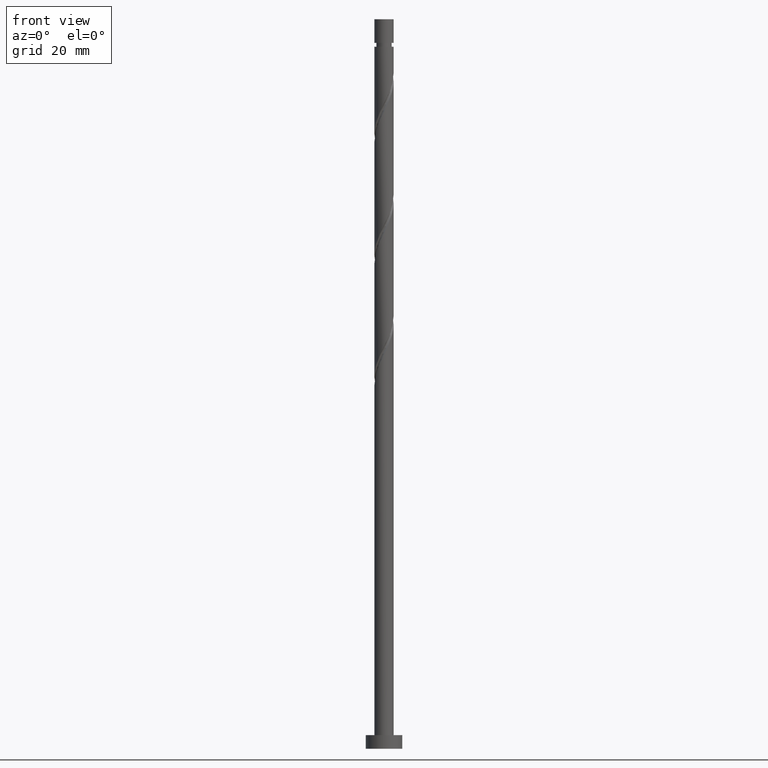
[diagram: clean part render]
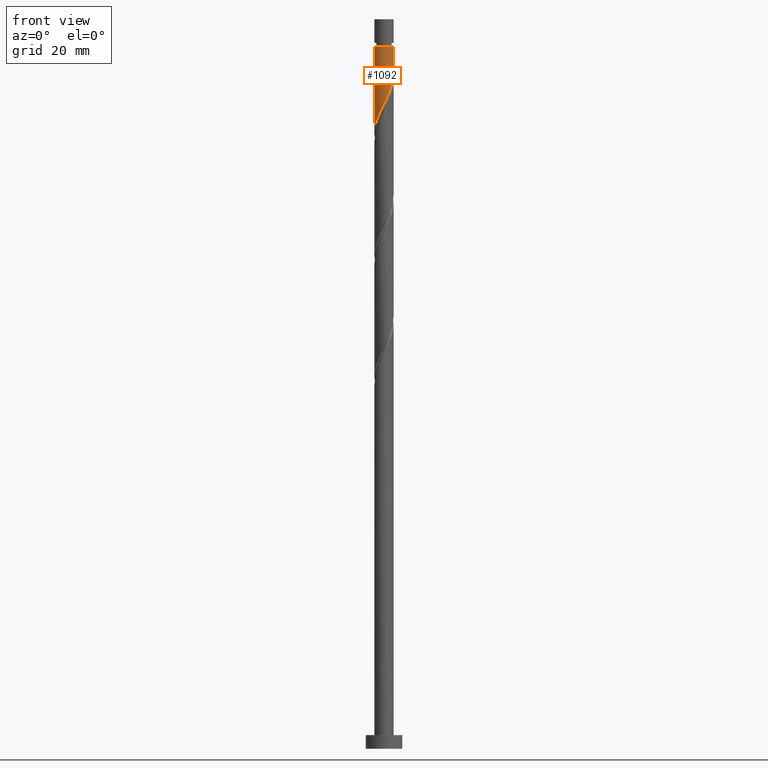
[diagram: same view with one face highlighted and labeled with its STEP entity id]
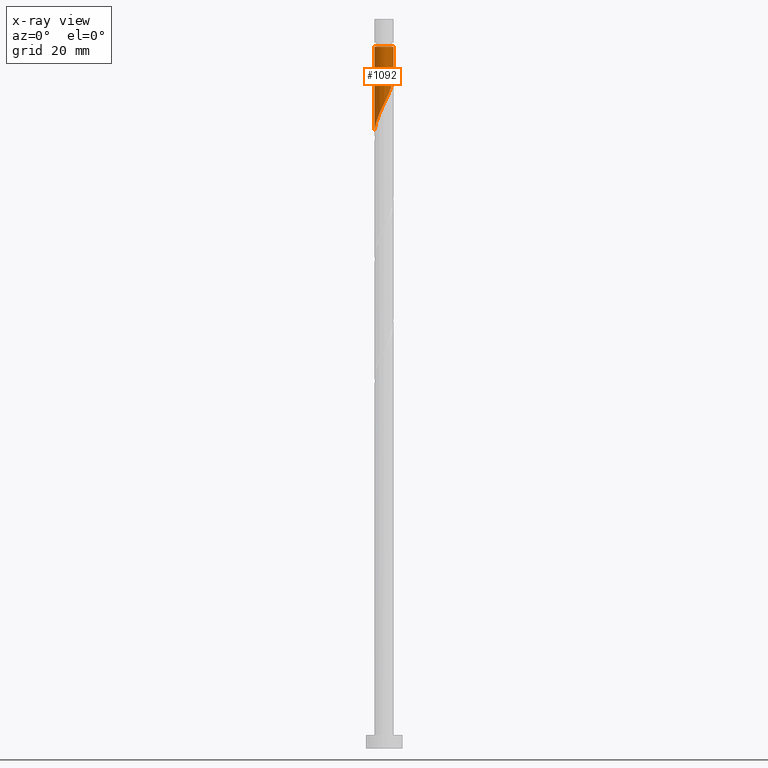
[diagram: x-ray of the same camera — body ghosted, the highlighted face saturated]
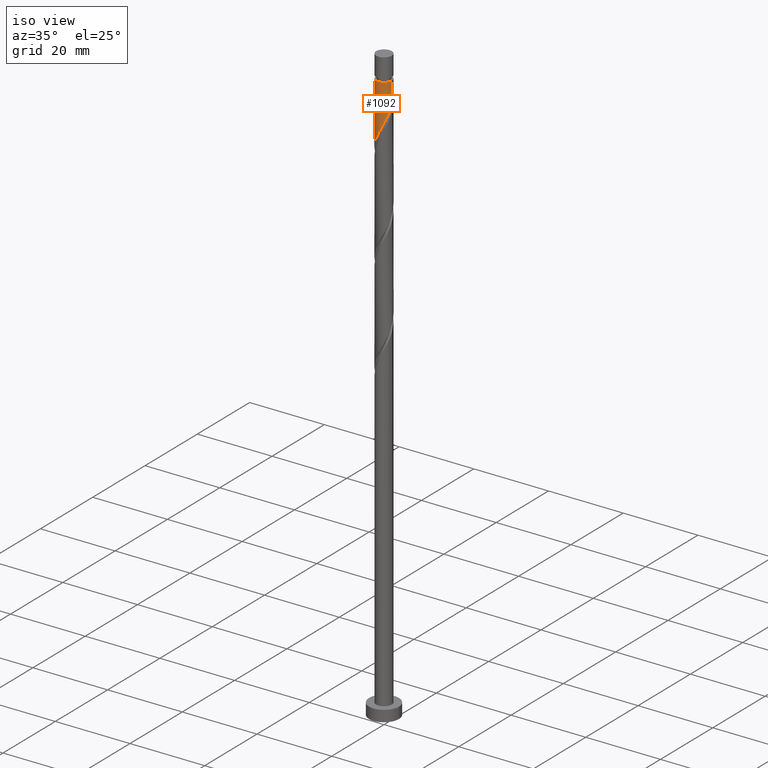
[diagram: same view with one face highlighted and labeled with its STEP entity id]
A machine part, front view. The second image highlights one B-rep face of the part: STEP entity #1092.
The next image is the same camera in x-ray: the body ghosted, the highlighted face saturated — about 0% of this face is hidden behind the body in this view.
A second angle (iso view) of the same face is appended — the face is thin or edge-on in the first view.
In plain terms, the highlighted cylindrical surface (edge-blend (fillet) strip) has radius 2.1 mm, axis along (-0, -0, -1).
Its self-contained STEP definition (entity closure, byte-faithful):
#15 = DIRECTION ( 'NONE',  ( -0.000000000000000000, -0.000000000000000000, -1.000000000000000000 ) ) ;
#22 = DIRECTION ( 'NONE',  ( -1.000000000000000000, 0.000000000000000000, 0.000000000000000000 ) ) ;
#52 = ORIENTED_EDGE ( 'NONE', *, *, #1243, .T. ) ;
#85 = CARTESIAN_POINT ( 'NONE',  ( 1.977579907388731906, -0.7065250950195427482, 146.6971200606527077 ) ) ;
#98 = VERTEX_POINT ( 'NONE', #871 ) ;
#225 = EDGE_LOOP ( 'NONE', ( #1224, #52, #1568, #1409 ) ) ;
#238 = CARTESIAN_POINT ( 'NONE',  ( -2.100000000000000089, 0.000000000000000000, 160.0000000000000000 ) ) ;
#297 = DIRECTION ( 'NONE',  ( -1.000000000000000000, 0.000000000000000000, 0.000000000000000000 ) ) ;
#304 = CARTESIAN_POINT ( 'NONE',  ( 0.000000000000000000, 0.000000000000000000, 160.0000000000000000 ) ) ;
#344 = CARTESIAN_POINT ( 'NONE',  ( -1.828995469419655517, -1.031879630985307550, 137.0001503636829909 ) ) ;
#355 = CARTESIAN_POINT ( 'NONE',  ( 2.099999999999999645, 9.721933457272655766E-17, 148.1526351460141484 ) ) ;
#364 = CARTESIAN_POINT ( 'NONE',  ( -2.100000000000000089, 1.408184669234184763E-14, 134.8193018126808340 ) ) ;
#398 = CARTESIAN_POINT ( 'NONE',  ( 2.099999999999999645, 9.721933457272654534E-17, 148.1526351460141484 ) ) ;
#403 = LINE ( 'NONE', #1550, #1271 ) ;
#465 = CARTESIAN_POINT ( 'NONE',  ( 0.4796760965221106843, -2.066657986902916022, 142.4546958182285152 ) ) ;
#487 = LINE ( 'NONE', #238, #620 ) ;
#512 = CARTESIAN_POINT ( 'NONE',  ( 2.100000000000000089, -0.06042860570002907966, 148.0305371412959516 ) ) ;
#522 = CARTESIAN_POINT ( 'NONE',  ( -2.099999999999993427, 0.000000000000000000, 153.9698473333799598 ) ) ;
#526 = VERTEX_POINT ( 'NONE', #398 ) ;
#582 = CARTESIAN_POINT ( 'NONE',  ( 1.520848874254228988, -1.479250855698230893, 144.8789382424708947 ) ) ;
#591 = CARTESIAN_POINT ( 'NONE',  ( -2.100000000000000533, -0.2405107475087535640, 135.3052617656521477 ) ) ;
#620 = VECTOR ( 'NONE', #1225, 1000.000000000000000 ) ;
#627 = CARTESIAN_POINT ( 'NONE',  ( 2.096525147393186739, -0.1207572206867016384, 147.9092412727738974 ) ) ;
#696 = CARTESIAN_POINT ( 'NONE',  ( -1.680633576468425483, -1.294849479303000983, 137.6062109697435858 ) ) ;
#708 = CARTESIAN_POINT ( 'NONE',  ( 2.079162880215278619, -0.4221920296964537522, 147.3031806667132741 ) ) ;
#770 = VERTEX_POINT ( 'NONE', #364 ) ;
#774 = CYLINDRICAL_SURFACE ( 'NONE', #1441, 2.100000000000000089 ) ;
#802 =( BOUNDED_CURVE ( )  B_SPLINE_CURVE ( 2, ( #355, #512, #627, #708, #85, #832, #996, #582, #1076, #1619, #1483, #465, #953, #868, #814, #839, #1328, #1241, #1475, #696, #344, #1348, #1206, #591, #1085 ),
 .UNSPECIFIED., .F., .T. ) 
 B_SPLINE_CURVE_WITH_KNOTS ( ( 3, 2, 2, 2, 2, 2, 2, 2, 2, 2, 2, 2, 3 ),
 ( 0.3045252162417513841, 0.3068181818181818232, 0.3181818181818181768, 0.3295454545454545303, 0.3409090909090908839, 0.3522727272727272929, 0.3636363636363636465, 0.3750000000000000000, 0.3863636363636363535, 0.3977272727272727071, 0.4090909090909091161, 0.4204545454545454697, 0.4295252162417514952 ),
 .UNSPECIFIED. ) 
 CURVE ( )  GEOMETRIC_REPRESENTATION_ITEM ( )  RATIONAL_B_SPLINE_CURVE ( ( 0.9061101570135617900, 0.9072237824201438983, 0.9090909090909213841, 0.8998376744372237335, 0.9090909090909213841, 0.8998376744372237335, 0.9090909090909213841, 0.8998376744372237335, 0.9090909090909213841, 0.8998376744372237335, 0.9090909090909213841, 0.8998376744372237335, 0.9090909090909213841, 0.8998376744372237335, 0.9090909090909213841, 0.8998376744372237335, 0.9090909090909213841, 0.8998376744372237335, 0.9090909090909213841, 0.8998376744372237335, 0.9090909090909213841, 0.8998376744372237335, 0.9090909090909213841, 0.9017048011080011083, 0.9061101570135619010 ) ) 
 REPRESENTATION_ITEM ( '' )  );
#814 = CARTESIAN_POINT ( 'NONE',  ( -0.4178947235847813024, -2.057999999999999829, 140.6365140000466454 ) ) ;
#830 = VERTEX_POINT ( 'NONE', #522 ) ;
#832 = CARTESIAN_POINT ( 'NONE',  ( 1.875996934562186080, -0.9908581603426318551, 146.0910594545920844 ) ) ;
#839 = CARTESIAN_POINT ( 'NONE',  ( -0.7137904526264361449, -1.997915809573479251, 140.0304533939860221 ) ) ;
#868 = CARTESIAN_POINT ( 'NONE',  ( -0.1219989945431265432, -2.118084190426521296, 141.2425746061072687 ) ) ;
#871 = CARTESIAN_POINT ( 'NONE',  ( 2.099999999999993427, 2.571758278209437520E-16, 153.9698473333799598 ) ) ;
#953 = CARTESIAN_POINT ( 'NONE',  ( 0.1788385509894915848, -2.092371088664718215, 141.8486352121678635 ) ) ;
#996 = CARTESIAN_POINT ( 'NONE',  ( 1.698422904408207534, -1.235054508020431152, 145.4849988485314896 ) ) ;
#1009 = CARTESIAN_POINT ( 'NONE',  ( 0.000000000000000000, 0.000000000000000000, 153.9698473333799598 ) ) ;
#1041 = FACE_OUTER_BOUND ( 'NONE', #225, .T. ) ;
#1045 = EDGE_CURVE ( 'NONE', #526, #770, #802, .T. ) ;
#1059 = CIRCLE ( 'NONE', #1080, 2.099999999999993427 ) ;
#1076 = CARTESIAN_POINT ( 'NONE',  ( 1.281669778622471334, -1.663527149933485383, 144.2728776364102714 ) ) ;
#1080 = AXIS2_PLACEMENT_3D ( 'NONE', #1009, #15, #22 ) ;
#1085 = CARTESIAN_POINT ( 'NONE',  ( -2.100000000000000089, 1.408184669234184763E-14, 134.8193018126808340 ) ) ;
#1092 = ADVANCED_FACE ( 'NONE', ( #1041 ), #774, .T. ) ;
#1206 = CARTESIAN_POINT ( 'NONE',  ( -2.045622388470990760, -0.4747936854953327401, 135.7880291515618012 ) ) ;
#1224 = ORIENTED_EDGE ( 'NONE', *, *, #1267, .F. ) ;
#1225 = DIRECTION ( 'NONE',  ( -0.000000000000000000, -0.000000000000000000, -1.000000000000000000 ) ) ;
#1241 = CARTESIAN_POINT ( 'NONE',  ( -1.247754853313228329, -1.715888171891626568, 138.8183321818647755 ) ) ;
#1243 = EDGE_CURVE ( 'NONE', #98, #830, #1059, .T. ) ;
#1267 = EDGE_CURVE ( 'NONE', #98, #526, #403, .T. ) ;
#1271 = VECTOR ( 'NONE', #1541, 1000.000000000000000 ) ;
#1328 = CARTESIAN_POINT ( 'NONE',  ( -0.9807726529698322926, -1.856901990732552576, 139.4243927879254272 ) ) ;
#1348 = CARTESIAN_POINT ( 'NONE',  ( -1.977357362370884886, -0.7689097826676144498, 136.3940897576223676 ) ) ;
#1380 = EDGE_CURVE ( 'NONE', #830, #770, #487, .T. ) ;
#1409 = ORIENTED_EDGE ( 'NONE', *, *, #1045, .F. ) ;
#1441 = AXIS2_PLACEMENT_3D ( 'NONE', #304, #1572, #297 ) ;
#1475 = CARTESIAN_POINT ( 'NONE',  ( -1.464194214890827350, -1.505368825597313664, 138.2122715758042375 ) ) ;
#1483 = CARTESIAN_POINT ( 'NONE',  ( 0.7610833897564127648, -1.957230715535827503, 143.0607564242890817 ) ) ;
#1541 = DIRECTION ( 'NONE',  ( -0.000000000000000000, -0.000000000000000000, -1.000000000000000000 ) ) ;
#1550 = CARTESIAN_POINT ( 'NONE',  ( 2.100000000000000089, 2.571758278209441957E-16, 160.0000000000000000 ) ) ;
#1568 = ORIENTED_EDGE ( 'NONE', *, *, #1380, .T. ) ;
#1572 = DIRECTION ( 'NONE',  ( -0.000000000000000000, -0.000000000000000000, -1.000000000000000000 ) ) ;
#1619 = CARTESIAN_POINT ( 'NONE',  ( 1.042490682990714790, -1.847803444168739873, 143.6668170303496765 ) ) ;